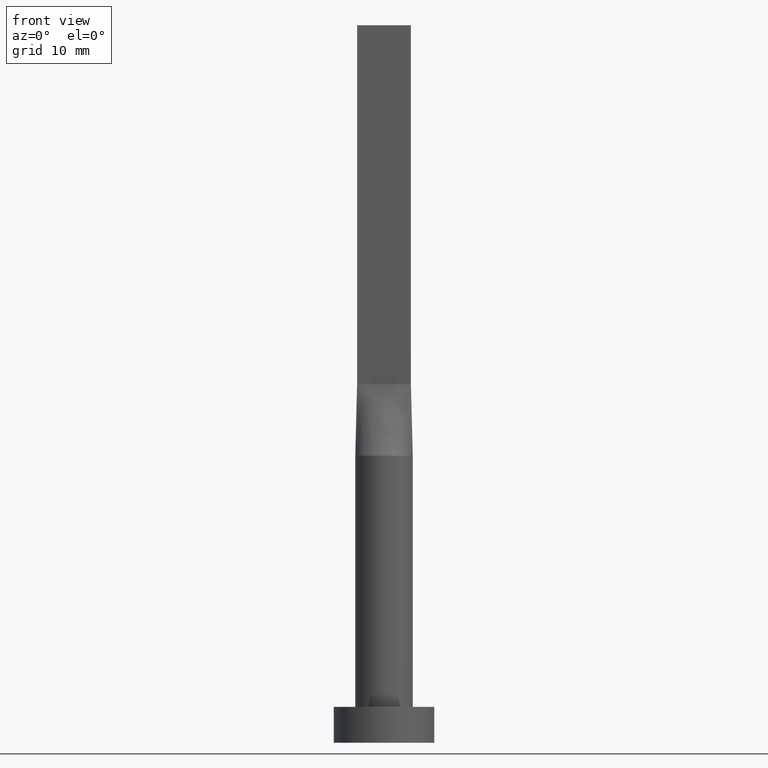
[diagram: clean part render]
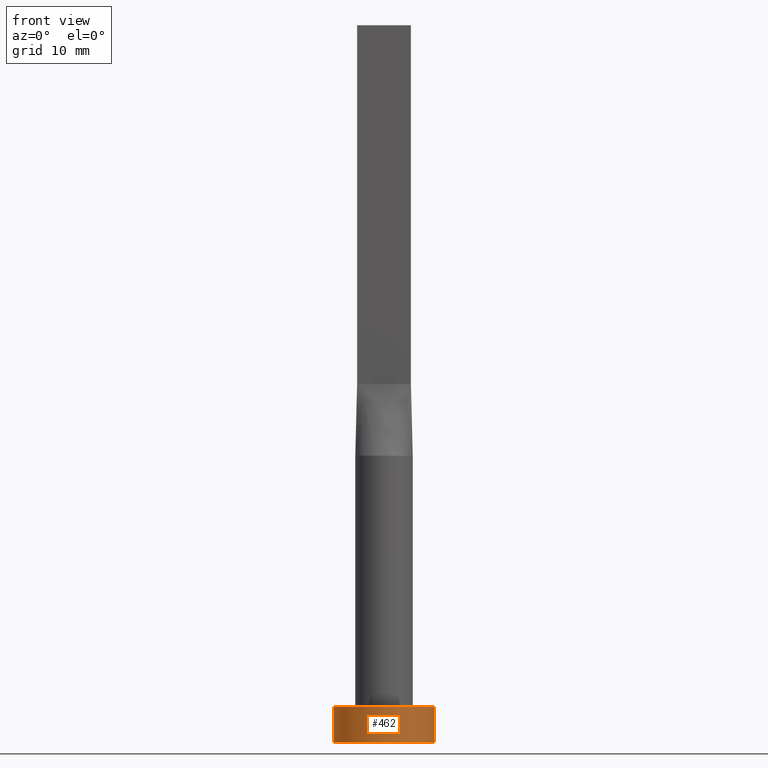
[diagram: same view with one face highlighted and labeled with its STEP entity id]
A machine part, front view. The second image highlights one B-rep face of the part: STEP entity #462.
In plain terms, the highlighted cylindrical surface (partial cylindrical patch) has radius 7 mm, axis along (-0, -0, -1).
Its self-contained STEP definition (entity closure, byte-faithful):
#5 = AXIS2_PLACEMENT_3D ( 'NONE', #186, #388, #115 ) ;
#6 = DIRECTION ( 'NONE',  ( -0.000000000000000000, -0.000000000000000000, -1.000000000000000000 ) ) ;
#32 = DIRECTION ( 'NONE',  ( -0.000000000000000000, -0.000000000000000000, -1.000000000000000000 ) ) ;
#69 = ORIENTED_EDGE ( 'NONE', *, *, #372, .T. ) ;
#72 = VERTEX_POINT ( 'NONE', #278 ) ;
#95 = CIRCLE ( 'NONE', #5, 7.000000000000000000 ) ;
#96 = CARTESIAN_POINT ( 'NONE',  ( -7.000000000000000000, 0.000000000000000000, 5.000000000000000000 ) ) ;
#115 = DIRECTION ( 'NONE',  ( 1.000000000000000000, 0.000000000000000000, 0.000000000000000000 ) ) ;
#117 = DIRECTION ( 'NONE',  ( -1.000000000000000000, 0.000000000000000000, 0.000000000000000000 ) ) ;
#121 = DIRECTION ( 'NONE',  ( -0.000000000000000000, -0.000000000000000000, -1.000000000000000000 ) ) ;
#158 = AXIS2_PLACEMENT_3D ( 'NONE', #268, #482, #306 ) ;
#167 = ORIENTED_EDGE ( 'NONE', *, *, #558, .F. ) ;
#186 = CARTESIAN_POINT ( 'NONE',  ( 0.000000000000000000, 0.000000000000000000, 0.000000000000000000 ) ) ;
#187 = EDGE_LOOP ( 'NONE', ( #167, #210, #69, #276 ) ) ;
#205 = CYLINDRICAL_SURFACE ( 'NONE', #303, 7.000000000000000000 ) ;
#210 = ORIENTED_EDGE ( 'NONE', *, *, #513, .F. ) ;
#211 = CARTESIAN_POINT ( 'NONE',  ( 7.000000000000000000, 8.572527594031473190E-16, 5.000000000000000000 ) ) ;
#232 = LINE ( 'NONE', #415, #405 ) ;
#242 = VERTEX_POINT ( 'NONE', #211 ) ;
#252 = FACE_OUTER_BOUND ( 'NONE', #187, .T. ) ;
#264 = CARTESIAN_POINT ( 'NONE',  ( -7.000000000000000000, 0.000000000000000000, 0.000000000000000000 ) ) ;
#268 = CARTESIAN_POINT ( 'NONE',  ( 0.000000000000000000, 0.000000000000000000, 5.000000000000000000 ) ) ;
#276 = ORIENTED_EDGE ( 'NONE', *, *, #379, .T. ) ;
#278 = CARTESIAN_POINT ( 'NONE',  ( 7.000000000000000000, 8.572527594031473190E-16, 0.000000000000000000 ) ) ;
#280 = CIRCLE ( 'NONE', #158, 7.000000000000000000 ) ;
#303 = AXIS2_PLACEMENT_3D ( 'NONE', #514, #121, #117 ) ;
#306 = DIRECTION ( 'NONE',  ( 1.000000000000000000, 0.000000000000000000, 0.000000000000000000 ) ) ;
#348 = VERTEX_POINT ( 'NONE', #96 ) ;
#361 = LINE ( 'NONE', #450, #423 ) ;
#372 = EDGE_CURVE ( 'NONE', #348, #521, #232, .T. ) ;
#379 = EDGE_CURVE ( 'NONE', #521, #72, #95, .T. ) ;
#388 = DIRECTION ( 'NONE',  ( 0.000000000000000000, 0.000000000000000000, 1.000000000000000000 ) ) ;
#405 = VECTOR ( 'NONE', #6, 1000.000000000000000 ) ;
#415 = CARTESIAN_POINT ( 'NONE',  ( -7.000000000000000000, 0.000000000000000000, 5.000000000000000000 ) ) ;
#423 = VECTOR ( 'NONE', #32, 1000.000000000000000 ) ;
#450 = CARTESIAN_POINT ( 'NONE',  ( 7.000000000000000000, 8.572527594031473190E-16, 5.000000000000000000 ) ) ;
#462 = ADVANCED_FACE ( 'NONE', ( #252 ), #205, .T. ) ;
#482 = DIRECTION ( 'NONE',  ( 0.000000000000000000, 0.000000000000000000, 1.000000000000000000 ) ) ;
#513 = EDGE_CURVE ( 'NONE', #348, #242, #280, .T. ) ;
#514 = CARTESIAN_POINT ( 'NONE',  ( 0.000000000000000000, 0.000000000000000000, 5.000000000000000000 ) ) ;
#521 = VERTEX_POINT ( 'NONE', #264 ) ;
#558 = EDGE_CURVE ( 'NONE', #242, #72, #361, .T. ) ;